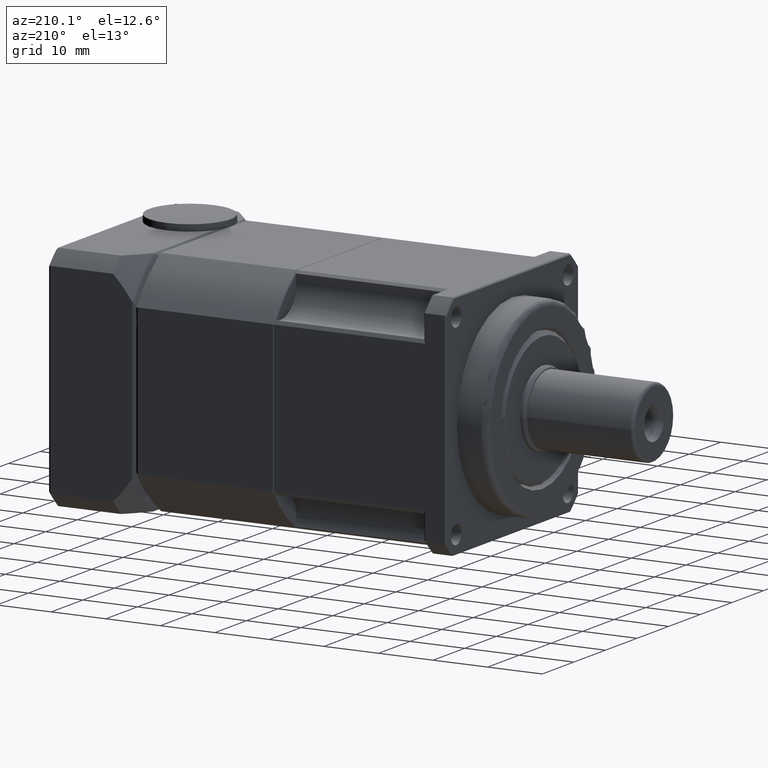
[diagram: clean part render]
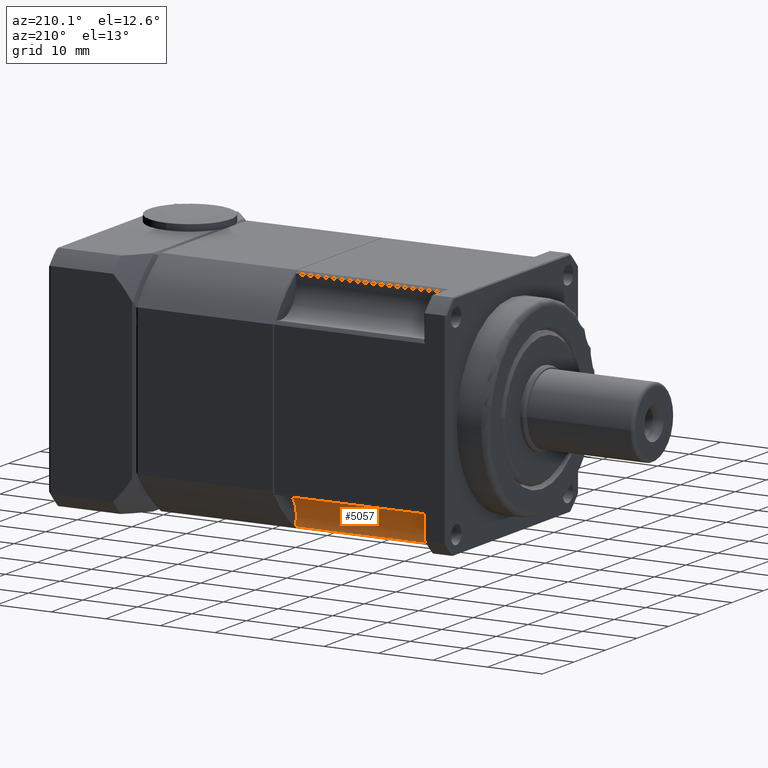
[diagram: same view with one face highlighted and labeled with its STEP entity id]
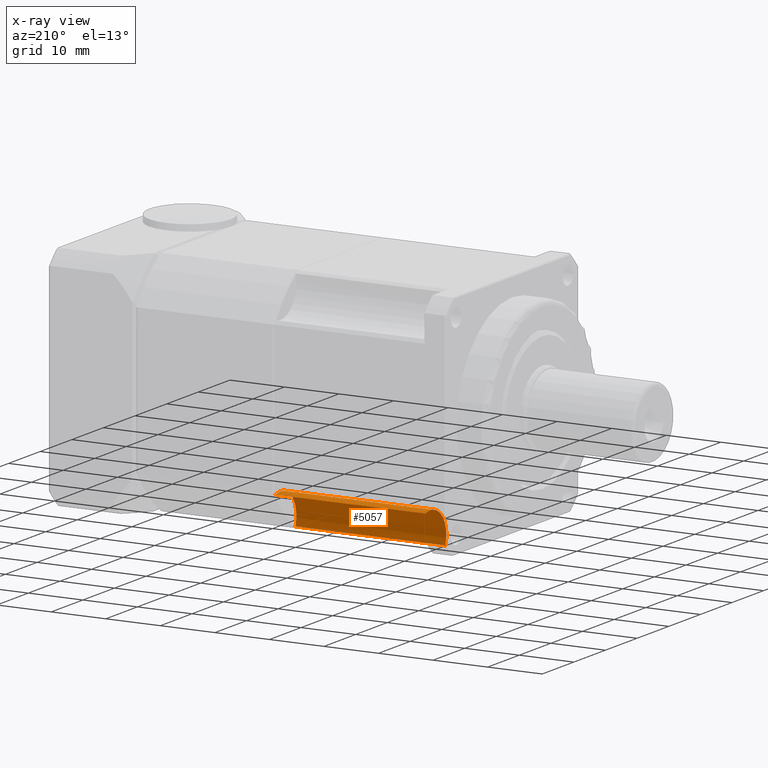
[diagram: x-ray of the same camera — body ghosted, the highlighted face saturated]
A machine part, auxiliary view. The second image highlights one B-rep face of the part: STEP entity #5057.
The next image is the same camera in x-ray: the body ghosted, the highlighted face saturated — about 0% of this face is hidden behind the body in this view.
In plain terms, the highlighted cylindrical surface (edge-blend (fillet) strip) has radius 5 mm, axis along (-1, 0, 0).
Its self-contained STEP definition (entity closure, byte-faithful):
#417=LINE('',#8857,#651);
#418=LINE('',#8859,#652);
#651=VECTOR('',#7085,27.5);
#652=VECTOR('',#7088,27.5);
#1270=FACE_OUTER_BOUND('',#1724,.T.);
#1724=EDGE_LOOP('',(#4274,#4275,#4276,#4277,#4278,#4279));
#1983=CIRCLE('',#5508,5.);
#2004=CIRCLE('',#5546,5.);
#2031=CIRCLE('',#5599,5.);
#2070=CIRCLE('',#5685,5.);
#2368=VERTEX_POINT('',#8399);
#2369=VERTEX_POINT('',#8401);
#2399=VERTEX_POINT('',#8522);
#2431=VERTEX_POINT('',#8620);
#2432=VERTEX_POINT('',#8622);
#2493=VERTEX_POINT('',#8856);
#2964=EDGE_CURVE('',#2368,#2369,#1983,.T.);
#2987=EDGE_CURVE('',#2399,#2368,#2004,.T.);
#3023=EDGE_CURVE('',#2432,#2431,#2031,.T.);
#3113=EDGE_CURVE('',#2493,#2431,#417,.T.);
#3114=EDGE_CURVE('',#2369,#2493,#2070,.T.);
#3115=EDGE_CURVE('',#2432,#2399,#418,.T.);
#4274=ORIENTED_EDGE('',*,*,#3113,.F.);
#4275=ORIENTED_EDGE('',*,*,#3114,.F.);
#4276=ORIENTED_EDGE('',*,*,#2964,.F.);
#4277=ORIENTED_EDGE('',*,*,#2987,.F.);
#4278=ORIENTED_EDGE('',*,*,#3115,.F.);
#4279=ORIENTED_EDGE('',*,*,#3023,.T.);
#4547=CYLINDRICAL_SURFACE('',#5684,5.);
#5057=ADVANCED_FACE('',(#1270),#4547,.F.);
#5508=AXIS2_PLACEMENT_3D('',#8463,#6693,#6694);
#5546=AXIS2_PLACEMENT_3D('',#8524,#6771,#6772);
#5599=AXIS2_PLACEMENT_3D('',#8623,#6882,#6883);
#5684=AXIS2_PLACEMENT_3D('',#8855,#7083,#7084);
#5685=AXIS2_PLACEMENT_3D('',#8858,#7086,#7087);
#6693=DIRECTION('center_axis',(-1.,4.44089209850051E-16,1.50008167835232E-15));
#6694=DIRECTION('ref_axis',(-1.50008167835233E-15,-9.55762566575252E-15,
-1.));
#6771=DIRECTION('center_axis',(-1.,4.44089209850051E-16,1.50008167835232E-15));
#6772=DIRECTION('ref_axis',(-1.50008167835233E-15,-9.55762566575252E-15,
-1.));
#6882=DIRECTION('center_axis',(-1.,4.44089209850051E-16,1.50008167835232E-15));
#6883=DIRECTION('ref_axis',(-1.50008167835233E-15,-9.55762566575252E-15,
-1.));
#7083=DIRECTION('center_axis',(-1.,4.44089209850051E-16,1.50008167835232E-15));
#7084=DIRECTION('ref_axis',(-1.50008167835233E-15,-9.55762566575252E-15,
-1.));
#7085=DIRECTION('',(-1.,4.44089209850051E-16,1.50008167835232E-15));
#7086=DIRECTION('center_axis',(-1.,4.44089209850051E-16,1.50008167835232E-15));
#7087=DIRECTION('ref_axis',(-1.50008167835233E-15,-9.55762566575252E-15,
-1.));
#7088=DIRECTION('',(1.,-4.44089209850051E-16,-1.50008167835232E-15));
#8399=CARTESIAN_POINT('',(-7.28400498561372,-24.7335239437411,-47.7259578922837));
#8401=CARTESIAN_POINT('',(-7.28400498561372,-18.4892825337622,-41.4817164823049));
#8463=CARTESIAN_POINT('Origin',(-7.28400498561361,-19.9523787351725,-46.2628616908736));
#8522=CARTESIAN_POINT('',(-7.28400498561362,-24.6683513078359,-47.9240668840651));
#8524=CARTESIAN_POINT('Origin',(-7.28400498561361,-19.9523787351725,-46.2628616908736));
#8620=CARTESIAN_POINT('',(-34.7840049856136,-18.2911735419808,-41.5468891182102));
#8622=CARTESIAN_POINT('',(-34.7840049856136,-24.6683513078359,-47.9240668840651));
#8623=CARTESIAN_POINT('Origin',(-34.7840049856136,-19.9523787351725,-46.2628616908735));
#8855=CARTESIAN_POINT('Origin',(-7.28400498561361,-19.9523787351725,-46.2628616908736));
#8856=CARTESIAN_POINT('',(-7.2840049856136,-18.2911735419808,-41.5468891182102));
#8857=CARTESIAN_POINT('',(-7.2840049856136,-18.2911735419808,-41.5468891182102));
#8858=CARTESIAN_POINT('Origin',(-7.28400498561361,-19.9523787351725,-46.2628616908736));
#8859=CARTESIAN_POINT('',(-7.28400498561362,-24.6683513078359,-47.9240668840651));